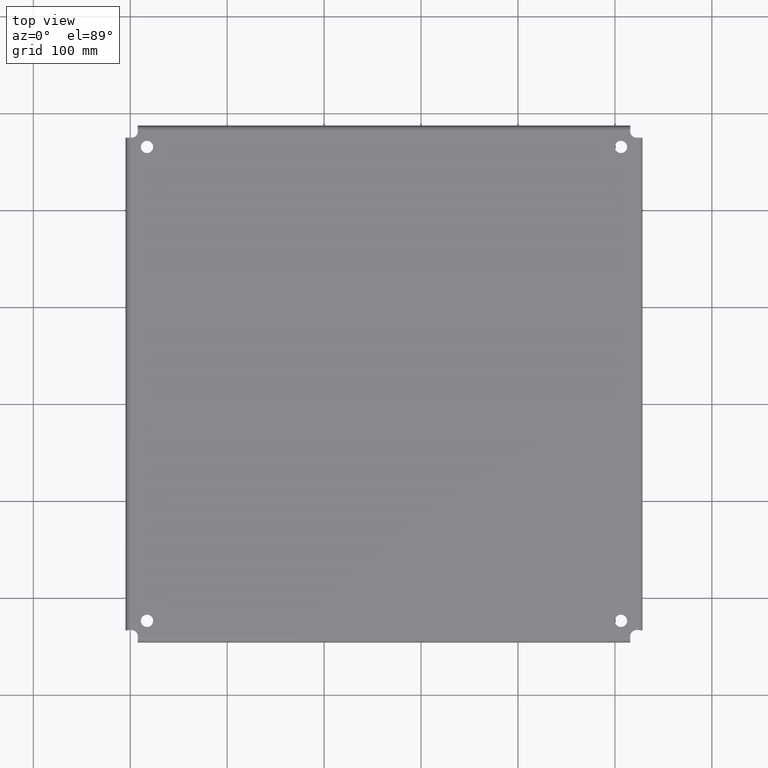
[diagram: clean part render]
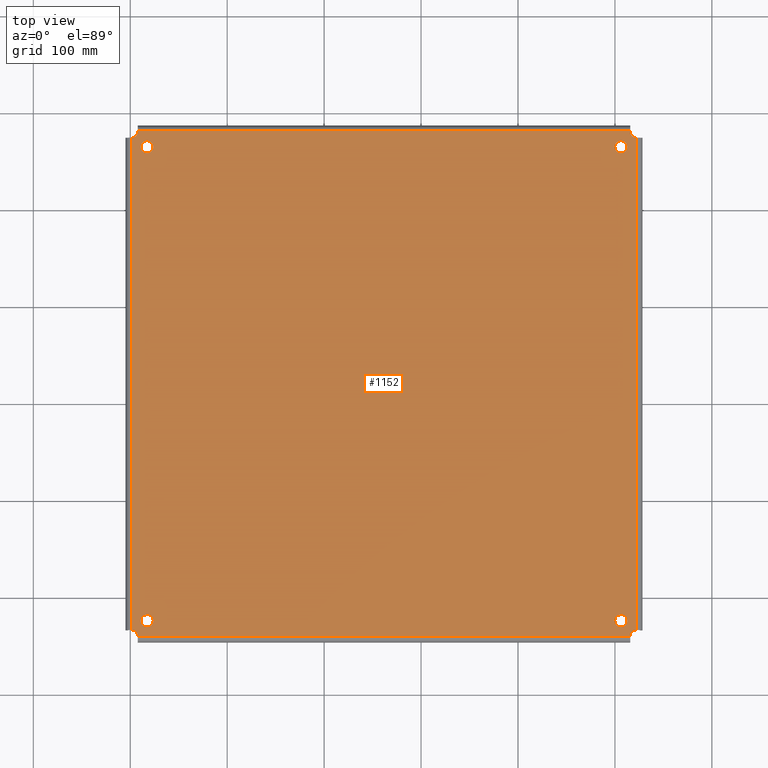
[diagram: same view with one face highlighted and labeled with its STEP entity id]
A machine part, top view. The second image highlights one B-rep face of the part: STEP entity #1152.
In plain terms, the highlighted planar face has unit normal (-0, 0, 1).
Its self-contained STEP definition (entity closure, byte-faithful):
#8 = EDGE_CURVE ( 'NONE', #418, #35, #894, .T. ) ;
#13 = FACE_BOUND ( 'NONE', #1100, .T. ) ;
#18 = VERTEX_POINT ( 'NONE', #243 ) ;
#25 = CARTESIAN_POINT ( 'NONE',  ( -23.56629661424700500, -44.86211278189822600, -29.14476460107778500 ) ) ;
#35 = VERTEX_POINT ( 'NONE', #1180 ) ;
#36 = CARTESIAN_POINT ( 'NONE',  ( -23.56629661424701200, -24.36211278189821500, -29.14476460107778500 ) ) ;
#37 = EDGE_CURVE ( 'NONE', #905, #822, #652, .T. ) ;
#44 = CARTESIAN_POINT ( 'NONE',  ( -3.691296614247005200, -44.23711278189822600, -29.14476460107778500 ) ) ;
#62 = AXIS2_PLACEMENT_3D ( 'NONE', #36, #833, #144 ) ;
#64 = ORIENTED_EDGE ( 'NONE', *, *, #301, .F. ) ;
#78 = EDGE_CURVE ( 'NONE', #418, #822, #556, .T. ) ;
#83 = CARTESIAN_POINT ( 'NONE',  ( -3.066296614246992300, -44.86211278189822600, -29.14476460107778500 ) ) ;
#88 = EDGE_CURVE ( 'NONE', #1414, #1007, #644, .T. ) ;
#91 = CARTESIAN_POINT ( 'NONE',  ( -3.941296614247006100, -24.98711278189821900, -29.14476460107778500 ) ) ;
#109 = EDGE_CURVE ( 'NONE', #905, #168, #733, .T. ) ;
#114 = VECTOR ( 'NONE', #407, 39.37007874015748100 ) ;
#117 = CARTESIAN_POINT ( 'NONE',  ( -23.31629661424700800, -45.11211278189822600, -29.14476460107778500 ) ) ;
#123 = EDGE_LOOP ( 'NONE', ( #257, #898 ) ) ;
#135 = VERTEX_POINT ( 'NONE', #1318 ) ;
#139 = DIRECTION ( 'NONE',  ( 1.000000000000000000, 0.0000000000000000000, 0.0000000000000000000 ) ) ;
#143 = CARTESIAN_POINT ( 'NONE',  ( -23.31629661424700800, -44.88211278189821500, -29.14476460107778500 ) ) ;
#144 = DIRECTION ( 'NONE',  ( 1.000000000000000000, 0.0000000000000000000, 0.0000000000000000000 ) ) ;
#150 = DIRECTION ( 'NONE',  ( 1.000000000000000000, 0.0000000000000000000, 0.0000000000000000000 ) ) ;
#154 = EDGE_CURVE ( 'NONE', #327, #203, #314, .T. ) ;
#166 = DIRECTION ( 'NONE',  ( 0.0000000000000000000, 0.0000000000000000000, 1.000000000000000000 ) ) ;
#168 = VERTEX_POINT ( 'NONE', #1322 ) ;
#179 = EDGE_CURVE ( 'NONE', #1027, #168, #656, .T. ) ;
#180 = VECTOR ( 'NONE', #1439, 39.37007874015748100 ) ;
#185 = VECTOR ( 'NONE', #1265, 39.37007874015748100 ) ;
#186 = VERTEX_POINT ( 'NONE', #1216 ) ;
#192 = AXIS2_PLACEMENT_3D ( 'NONE', #25, #825, #139 ) ;
#194 = DIRECTION ( 'NONE',  ( 1.000000000000000000, 0.0000000000000000000, 0.0000000000000000000 ) ) ;
#203 = VERTEX_POINT ( 'NONE', #395 ) ;
#211 = LINE ( 'NONE', #621, #180 ) ;
#226 = EDGE_CURVE ( 'NONE', #396, #379, #579, .T. ) ;
#243 = CARTESIAN_POINT ( 'NONE',  ( -23.58629661424700800, -44.61211278189821900, -29.14476460107778500 ) ) ;
#246 = DIRECTION ( 'NONE',  ( 0.0000000000000000000, -0.0000000000000000000, -1.000000000000000000 ) ) ;
#251 = EDGE_CURVE ( 'NONE', #1027, #562, #611, .T. ) ;
#257 = ORIENTED_EDGE ( 'NONE', *, *, #458, .F. ) ;
#273 = ORIENTED_EDGE ( 'NONE', *, *, #960, .F. ) ;
#276 = CARTESIAN_POINT ( 'NONE',  ( -23.31629661424700800, -44.86211278189822600, -29.14476460107778500 ) ) ;
#278 = CARTESIAN_POINT ( 'NONE',  ( -3.046296614247005200, -45.11211278189821200, -29.14476460107778500 ) ) ;
#295 = VERTEX_POINT ( 'NONE', #298 ) ;
#298 = CARTESIAN_POINT ( 'NONE',  ( -23.19129661424700500, -44.23711278189822600, -29.14476460107778500 ) ) ;
#300 = CARTESIAN_POINT ( 'NONE',  ( -3.691296614247005200, -44.23711278189822600, -29.14476460107778500 ) ) ;
#301 = EDGE_CURVE ( 'NONE', #1007, #1414, #506, .T. ) ;
#310 = ORIENTED_EDGE ( 'NONE', *, *, #1420, .F. ) ;
#314 = CIRCLE ( 'NONE', #399, 0.2499999999999987000 ) ;
#316 = CARTESIAN_POINT ( 'NONE',  ( -3.316296614246993200, -45.11211278189821900, -29.14476460107778500 ) ) ;
#322 = DIRECTION ( 'NONE',  ( 1.000000000000000000, 0.0000000000000000000, 0.0000000000000000000 ) ) ;
#325 = CARTESIAN_POINT ( 'NONE',  ( -3.066296614246992300, -44.61211278189821900, -29.14476460107778500 ) ) ;
#327 = VERTEX_POINT ( 'NONE', #1356 ) ;
#330 = EDGE_LOOP ( 'NONE', ( #64, #755 ) ) ;
#333 = EDGE_CURVE ( 'NONE', #135, #562, #1398, .T. ) ;
#336 = DIRECTION ( 'NONE',  ( 0.0000000000000000000, 0.0000000000000000000, 1.000000000000000000 ) ) ;
#345 = EDGE_LOOP ( 'NONE', ( #452, #391, #310, #675, #872, #1157, #273, #629, #1029, #1384, #1434, #1077, #1297, #1351, #1207, #899 ) ) ;
#357 = DIRECTION ( 'NONE',  ( 0.0000000000000000000, 0.0000000000000000000, 1.000000000000000000 ) ) ;
#359 = VECTOR ( 'NONE', #902, 39.37007874015748100 ) ;
#374 = LINE ( 'NONE', #117, #1276 ) ;
#379 = VERTEX_POINT ( 'NONE', #91 ) ;
#386 = DIRECTION ( 'NONE',  ( -3.122111992759158500E-016, 1.000000000000000000, -0.0000000000000000000 ) ) ;
#390 = CARTESIAN_POINT ( 'NONE',  ( -23.31629661424701200, -24.36211278189821500, -29.14476460107778500 ) ) ;
#391 = ORIENTED_EDGE ( 'NONE', *, *, #8, .T. ) ;
#395 = CARTESIAN_POINT ( 'NONE',  ( -23.19129661424700500, -24.98711278189821900, -29.14476460107778500 ) ) ;
#396 = VERTEX_POINT ( 'NONE', #665 ) ;
#399 = AXIS2_PLACEMENT_3D ( 'NONE', #859, #166, #980 ) ;
#401 = ORIENTED_EDGE ( 'NONE', *, *, #736, .F. ) ;
#403 = DIRECTION ( 'NONE',  ( 0.0000000000000000000, 0.0000000000000000000, 1.000000000000000000 ) ) ;
#405 = EDGE_CURVE ( 'NONE', #135, #878, #990, .T. ) ;
#407 = DIRECTION ( 'NONE',  ( 0.0000000000000000000, -1.000000000000000000, 0.0000000000000000000 ) ) ;
#415 = DIRECTION ( 'NONE',  ( 1.000000000000000000, 0.0000000000000000000, 0.0000000000000000000 ) ) ;
#418 = VERTEX_POINT ( 'NONE', #549 ) ;
#420 = CARTESIAN_POINT ( 'NONE',  ( -23.81629661424700800, -45.11211278189821900, -29.14476460107778500 ) ) ;
#422 = PLANE ( 'NONE',  #786 ) ;
#438 = CARTESIAN_POINT ( 'NONE',  ( -23.81629661424700800, -44.88211278189821500, -29.14476460107778500 ) ) ;
#443 = CARTESIAN_POINT ( 'NONE',  ( -22.94129661424700800, -44.23711278189822600, -29.14476460107778500 ) ) ;
#452 = ORIENTED_EDGE ( 'NONE', *, *, #78, .F. ) ;
#455 = DIRECTION ( 'NONE',  ( 0.0000000000000000000, 1.000000000000000000, 0.0000000000000000000 ) ) ;
#458 = EDGE_CURVE ( 'NONE', #613, #295, #912, .T. ) ;
#463 = EDGE_CURVE ( 'NONE', #295, #613, #876, .T. ) ;
#465 = LINE ( 'NONE', #1369, #1055 ) ;
#484 = DIRECTION ( 'NONE',  ( 0.0000000000000000000, -1.000000000000000000, 0.0000000000000000000 ) ) ;
#502 = CIRCLE ( 'NONE', #654, 0.2499999999999987000 ) ;
#506 = CIRCLE ( 'NONE', #1268, 0.2499999999999987000 ) ;
#509 = CARTESIAN_POINT ( 'NONE',  ( -3.941296614247004300, -44.23711278189822600, -29.14476460107778500 ) ) ;
#520 = CARTESIAN_POINT ( 'NONE',  ( -2.816296614246993600, -44.61211278189821900, -29.14476460107778500 ) ) ;
#526 = AXIS2_PLACEMENT_3D ( 'NONE', #443, #1270, #559 ) ;
#535 = FACE_OUTER_BOUND ( 'NONE', #345, .T. ) ;
#549 = CARTESIAN_POINT ( 'NONE',  ( -3.316296614246995400, -24.34211278189821900, -29.14476460107778500 ) ) ;
#556 = LINE ( 'NONE', #1187, #770 ) ;
#559 = DIRECTION ( 'NONE',  ( 1.000000000000000000, 0.0000000000000000000, 0.0000000000000000000 ) ) ;
#561 = EDGE_CURVE ( 'NONE', #775, #878, #768, .T. ) ;
#562 = VERTEX_POINT ( 'NONE', #325 ) ;
#579 = CIRCLE ( 'NONE', #628, 0.2499999999999987000 ) ;
#587 = CARTESIAN_POINT ( 'NONE',  ( -23.81629661424700800, -24.34211278189821900, -29.14476460107778500 ) ) ;
#611 = LINE ( 'NONE', #520, #1435 ) ;
#613 = VERTEX_POINT ( 'NONE', #690 ) ;
#621 = CARTESIAN_POINT ( 'NONE',  ( -23.31629661424701200, -24.11211278189821500, -29.14476460107778500 ) ) ;
#626 = VERTEX_POINT ( 'NONE', #809 ) ;
#628 = AXIS2_PLACEMENT_3D ( 'NONE', #1105, #403, #1224 ) ;
#629 = ORIENTED_EDGE ( 'NONE', *, *, #723, .T. ) ;
#639 = EDGE_CURVE ( 'NONE', #775, #973, #374, .T. ) ;
#644 = CIRCLE ( 'NONE', #1291, 0.2499999999999987000 ) ;
#652 = CIRCLE ( 'NONE', #746, 0.2499999999999998100 ) ;
#654 = AXIS2_PLACEMENT_3D ( 'NONE', #1063, #357, #1179 ) ;
#656 = LINE ( 'NONE', #278, #1022 ) ;
#660 = DIRECTION ( 'NONE',  ( -0.0000000000000000000, 0.0000000000000000000, 1.000000000000000000 ) ) ;
#665 = CARTESIAN_POINT ( 'NONE',  ( -3.441296614247008700, -24.98711278189821900, -29.14476460107778500 ) ) ;
#670 = VERTEX_POINT ( 'NONE', #925 ) ;
#675 = ORIENTED_EDGE ( 'NONE', *, *, #1274, .T. ) ;
#678 = CARTESIAN_POINT ( 'NONE',  ( -3.691296614247007400, -24.98711278189821900, -29.14476460107778500 ) ) ;
#690 = CARTESIAN_POINT ( 'NONE',  ( -22.69129661424700800, -44.23711278189822600, -29.14476460107778500 ) ) ;
#723 = EDGE_CURVE ( 'NONE', #186, #973, #1134, .T. ) ;
#727 = CARTESIAN_POINT ( 'NONE',  ( -2.816296614246995800, -24.61211278189821200, -29.14476460107778500 ) ) ;
#729 = VECTOR ( 'NONE', #1304, 39.37007874015748100 ) ;
#733 = LINE ( 'NONE', #727, #729 ) ;
#735 = EDGE_LOOP ( 'NONE', ( #1227, #401 ) ) ;
#736 = EDGE_CURVE ( 'NONE', #203, #327, #502, .T. ) ;
#746 = AXIS2_PLACEMENT_3D ( 'NONE', #955, #246, #1069 ) ;
#753 = DIRECTION ( 'NONE',  ( -1.000000000000000000, -0.0000000000000000000, -0.0000000000000000000 ) ) ;
#755 = ORIENTED_EDGE ( 'NONE', *, *, #88, .F. ) ;
#768 = LINE ( 'NONE', #438, #185 ) ;
#770 = VECTOR ( 'NONE', #484, 39.37007874015748100 ) ;
#775 = VERTEX_POINT ( 'NONE', #143 ) ;
#786 = AXIS2_PLACEMENT_3D ( 'NONE', #420, #660, #1468 ) ;
#793 = DIRECTION ( 'NONE',  ( 1.000000000000000000, 0.0000000000000000000, 0.0000000000000000000 ) ) ;
#797 = VECTOR ( 'NONE', #753, 39.37007874015748100 ) ;
#809 = CARTESIAN_POINT ( 'NONE',  ( -23.56629661424701200, -24.61211278189821500, -29.14476460107778500 ) ) ;
#817 = CIRCLE ( 'NONE', #1020, 0.2499999999999987000 ) ;
#822 = VERTEX_POINT ( 'NONE', #961 ) ;
#825 = DIRECTION ( 'NONE',  ( 0.0000000000000000000, -0.0000000000000000000, -1.000000000000000000 ) ) ;
#833 = DIRECTION ( 'NONE',  ( 0.0000000000000000000, -0.0000000000000000000, -1.000000000000000000 ) ) ;
#839 = VECTOR ( 'NONE', #1404, 39.37007874015748100 ) ;
#844 = DIRECTION ( 'NONE',  ( 0.0000000000000000000, 0.0000000000000000000, 1.000000000000000000 ) ) ;
#848 = CARTESIAN_POINT ( 'NONE',  ( -3.066296614246994500, -24.61211278189821200, -29.14476460107778500 ) ) ;
#851 = FACE_BOUND ( 'NONE', #330, .T. ) ;
#855 = ORIENTED_EDGE ( 'NONE', *, *, #1205, .F. ) ;
#859 = CARTESIAN_POINT ( 'NONE',  ( -22.94129661424700800, -24.98711278189821900, -29.14476460107778500 ) ) ;
#872 = ORIENTED_EDGE ( 'NONE', *, *, #1196, .F. ) ;
#876 = CIRCLE ( 'NONE', #924, 0.2499999999999987000 ) ;
#878 = VERTEX_POINT ( 'NONE', #1085 ) ;
#887 = DIRECTION ( 'NONE',  ( 0.0000000000000000000, -0.0000000000000000000, -1.000000000000000000 ) ) ;
#894 = LINE ( 'NONE', #587, #839 ) ;
#898 = ORIENTED_EDGE ( 'NONE', *, *, #463, .F. ) ;
#899 = ORIENTED_EDGE ( 'NONE', *, *, #37, .T. ) ;
#902 = DIRECTION ( 'NONE',  ( -0.0000000000000000000, -1.000000000000000000, -0.0000000000000000000 ) ) ;
#905 = VERTEX_POINT ( 'NONE', #848 ) ;
#912 = CIRCLE ( 'NONE', #526, 0.2499999999999987000 ) ;
#924 = AXIS2_PLACEMENT_3D ( 'NONE', #1037, #336, #1160 ) ;
#925 = CARTESIAN_POINT ( 'NONE',  ( -23.58629661424700800, -24.61211278189821500, -29.14476460107778500 ) ) ;
#955 = CARTESIAN_POINT ( 'NONE',  ( -3.066296614246994500, -24.36211278189821200, -29.14476460107778500 ) ) ;
#960 = EDGE_CURVE ( 'NONE', #186, #18, #1111, .T. ) ;
#961 = CARTESIAN_POINT ( 'NONE',  ( -3.316296614246995400, -24.36211278189821200, -29.14476460107778500 ) ) ;
#973 = VERTEX_POINT ( 'NONE', #276 ) ;
#980 = DIRECTION ( 'NONE',  ( 1.000000000000000000, 0.0000000000000000000, 0.0000000000000000000 ) ) ;
#990 = LINE ( 'NONE', #316, #359 ) ;
#1006 = LINE ( 'NONE', #1115, #114 ) ;
#1007 = VERTEX_POINT ( 'NONE', #1338 ) ;
#1020 = AXIS2_PLACEMENT_3D ( 'NONE', #678, #1477, #793 ) ;
#1022 = VECTOR ( 'NONE', #386, 39.37007874015748100 ) ;
#1027 = VERTEX_POINT ( 'NONE', #1231 ) ;
#1029 = ORIENTED_EDGE ( 'NONE', *, *, #639, .F. ) ;
#1037 = CARTESIAN_POINT ( 'NONE',  ( -22.94129661424700800, -44.23711278189822600, -29.14476460107778500 ) ) ;
#1039 = EDGE_CURVE ( 'NONE', #670, #18, #1006, .T. ) ;
#1055 = VECTOR ( 'NONE', #322, 39.37007874015748100 ) ;
#1063 = CARTESIAN_POINT ( 'NONE',  ( -22.94129661424700800, -24.98711278189821900, -29.14476460107778500 ) ) ;
#1069 = DIRECTION ( 'NONE',  ( 1.000000000000000000, 0.0000000000000000000, 0.0000000000000000000 ) ) ;
#1077 = ORIENTED_EDGE ( 'NONE', *, *, #333, .T. ) ;
#1085 = CARTESIAN_POINT ( 'NONE',  ( -3.316296614246993200, -44.88211278189821500, -29.14476460107778500 ) ) ;
#1100 = EDGE_LOOP ( 'NONE', ( #1118, #855 ) ) ;
#1105 = CARTESIAN_POINT ( 'NONE',  ( -3.691296614247007400, -24.98711278189821900, -29.14476460107778500 ) ) ;
#1111 = LINE ( 'NONE', #1332, #797 ) ;
#1115 = CARTESIAN_POINT ( 'NONE',  ( -23.58629661424700800, -45.11211278189821900, -29.14476460107778500 ) ) ;
#1118 = ORIENTED_EDGE ( 'NONE', *, *, #226, .F. ) ;
#1124 = DIRECTION ( 'NONE',  ( 0.0000000000000000000, 0.0000000000000000000, 1.000000000000000000 ) ) ;
#1134 = CIRCLE ( 'NONE', #192, 0.2499999999999987000 ) ;
#1152 = ADVANCED_FACE ( 'NONE', ( #1462, #851, #13, #1166, #535 ), #422, .T. ) ;
#1157 = ORIENTED_EDGE ( 'NONE', *, *, #1039, .T. ) ;
#1160 = DIRECTION ( 'NONE',  ( 1.000000000000000000, 0.0000000000000000000, 0.0000000000000000000 ) ) ;
#1166 = FACE_BOUND ( 'NONE', #735, .T. ) ;
#1179 = DIRECTION ( 'NONE',  ( 1.000000000000000000, 0.0000000000000000000, 0.0000000000000000000 ) ) ;
#1180 = CARTESIAN_POINT ( 'NONE',  ( -23.31629661424701200, -24.34211278189821900, -29.14476460107778500 ) ) ;
#1187 = CARTESIAN_POINT ( 'NONE',  ( -3.316296614246995400, -24.11211278189820800, -29.14476460107778500 ) ) ;
#1196 = EDGE_CURVE ( 'NONE', #670, #626, #465, .T. ) ;
#1205 = EDGE_CURVE ( 'NONE', #379, #396, #817, .T. ) ;
#1207 = ORIENTED_EDGE ( 'NONE', *, *, #109, .F. ) ;
#1216 = CARTESIAN_POINT ( 'NONE',  ( -23.56629661424700500, -44.61211278189821900, -29.14476460107778500 ) ) ;
#1224 = DIRECTION ( 'NONE',  ( 1.000000000000000000, 0.0000000000000000000, 0.0000000000000000000 ) ) ;
#1227 = ORIENTED_EDGE ( 'NONE', *, *, #154, .F. ) ;
#1231 = CARTESIAN_POINT ( 'NONE',  ( -3.046296614247005200, -44.61211278189821900, -29.14476460107778500 ) ) ;
#1265 = DIRECTION ( 'NONE',  ( 1.000000000000000000, 0.0000000000000000000, 0.0000000000000000000 ) ) ;
#1268 = AXIS2_PLACEMENT_3D ( 'NONE', #300, #1124, #415 ) ;
#1270 = DIRECTION ( 'NONE',  ( 0.0000000000000000000, 0.0000000000000000000, 1.000000000000000000 ) ) ;
#1274 = EDGE_CURVE ( 'NONE', #1438, #626, #1290, .T. ) ;
#1276 = VECTOR ( 'NONE', #455, 39.37007874015748100 ) ;
#1290 = CIRCLE ( 'NONE', #62, 0.2499999999999987000 ) ;
#1291 = AXIS2_PLACEMENT_3D ( 'NONE', #44, #844, #150 ) ;
#1297 = ORIENTED_EDGE ( 'NONE', *, *, #251, .F. ) ;
#1304 = DIRECTION ( 'NONE',  ( 1.000000000000000000, -0.0000000000000000000, -0.0000000000000000000 ) ) ;
#1318 = CARTESIAN_POINT ( 'NONE',  ( -3.316296614246993200, -44.86211278189822600, -29.14476460107778500 ) ) ;
#1322 = CARTESIAN_POINT ( 'NONE',  ( -3.046296614247011400, -24.61211278189821200, -29.14476460107778500 ) ) ;
#1332 = CARTESIAN_POINT ( 'NONE',  ( -23.81629661424700800, -44.61211278189821900, -29.14476460107778500 ) ) ;
#1338 = CARTESIAN_POINT ( 'NONE',  ( -3.441296614247006500, -44.23711278189822600, -29.14476460107778500 ) ) ;
#1340 = AXIS2_PLACEMENT_3D ( 'NONE', #83, #887, #194 ) ;
#1351 = ORIENTED_EDGE ( 'NONE', *, *, #179, .T. ) ;
#1356 = CARTESIAN_POINT ( 'NONE',  ( -22.69129661424700800, -24.98711278189821900, -29.14476460107778500 ) ) ;
#1369 = CARTESIAN_POINT ( 'NONE',  ( -23.81629661424700800, -24.61211278189821500, -29.14476460107778500 ) ) ;
#1384 = ORIENTED_EDGE ( 'NONE', *, *, #561, .T. ) ;
#1398 = CIRCLE ( 'NONE', #1340, 0.2499999999999998100 ) ;
#1404 = DIRECTION ( 'NONE',  ( -1.000000000000000000, 0.0000000000000000000, -0.0000000000000000000 ) ) ;
#1414 = VERTEX_POINT ( 'NONE', #509 ) ;
#1420 = EDGE_CURVE ( 'NONE', #1438, #35, #211, .T. ) ;
#1434 = ORIENTED_EDGE ( 'NONE', *, *, #405, .F. ) ;
#1435 = VECTOR ( 'NONE', #1452, 39.37007874015748100 ) ;
#1438 = VERTEX_POINT ( 'NONE', #390 ) ;
#1439 = DIRECTION ( 'NONE',  ( -0.0000000000000000000, 1.000000000000000000, -0.0000000000000000000 ) ) ;
#1452 = DIRECTION ( 'NONE',  ( -1.000000000000000000, 0.0000000000000000000, 0.0000000000000000000 ) ) ;
#1462 = FACE_BOUND ( 'NONE', #123, .T. ) ;
#1468 = DIRECTION ( 'NONE',  ( 1.000000000000000000, 0.0000000000000000000, 0.0000000000000000000 ) ) ;
#1477 = DIRECTION ( 'NONE',  ( 0.0000000000000000000, 0.0000000000000000000, 1.000000000000000000 ) ) ;